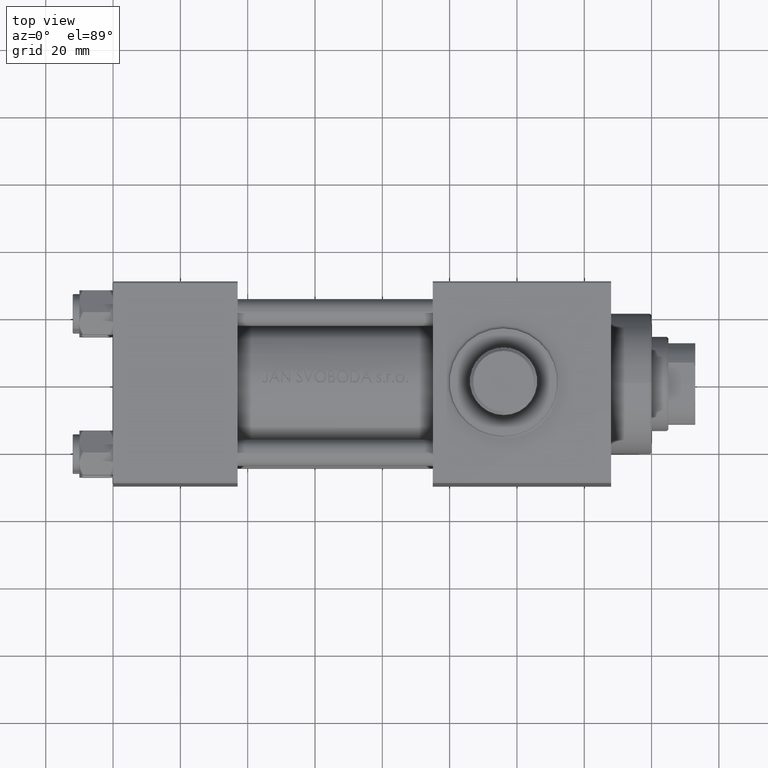
[diagram: clean part render]
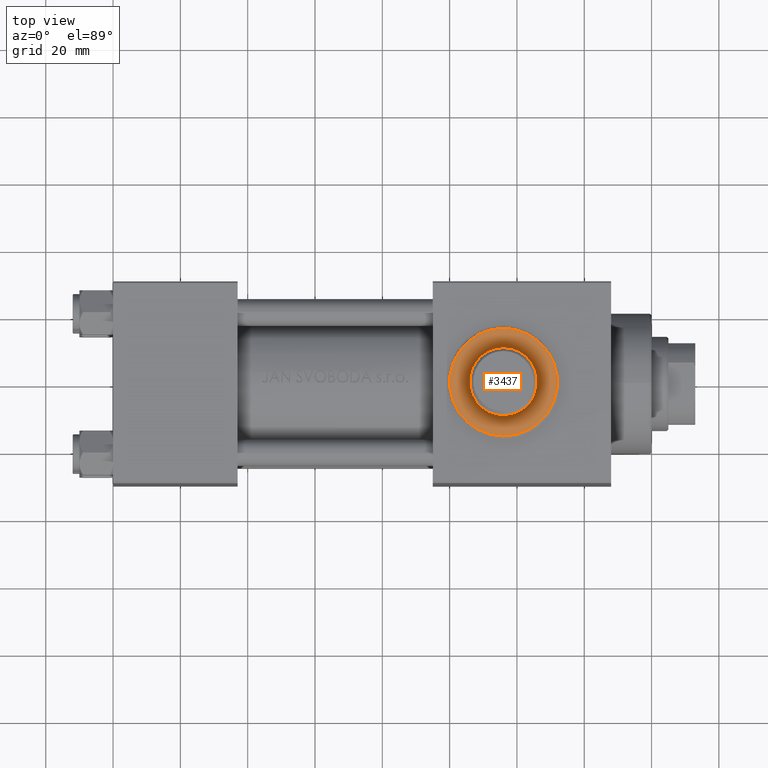
[diagram: same view with one face highlighted and labeled with its STEP entity id]
A machine part, top view. The second image highlights one B-rep face of the part: STEP entity #3437.
In plain terms, the highlighted planar face has unit normal (0, -0, 1).
Its self-contained STEP definition (entity closure, byte-faithful):
#121 = CARTESIAN_POINT ( 'NONE',  ( 115.9999999999999858, -32.50000000000000711, 10.00000000000000888 ) ) ;
#297 = CARTESIAN_POINT ( 'NONE',  ( 115.9999999999999858, -32.50000000000000711, -8.673617379884042868E-17 ) ) ;
#324 = VERTEX_POINT ( 'NONE', #25361 ) ;
#390 = EDGE_LOOP ( 'NONE', ( #46165, #12118 ) ) ;
#877 = FACE_OUTER_BOUND ( 'NONE', #390, .T. ) ;
#1973 = CIRCLE ( 'NONE', #22124, 16.00000000000002487 ) ;
#2490 = VERTEX_POINT ( 'NONE', #121 ) ;
#3098 = DIRECTION ( 'NONE',  ( 0.000000000000000000, 0.000000000000000000, -1.000000000000000000 ) ) ;
#3411 = CARTESIAN_POINT ( 'NONE',  ( 115.9999999999999858, -32.50000000000000711, -10.00000000000000888 ) ) ;
#3437 = ADVANCED_FACE ( 'NONE', ( #14445, #877 ), #43257, .T. ) ;
#3720 = DIRECTION ( 'NONE',  ( 0.000000000000000000, -1.000000000000000000, -8.673617379884036705E-17 ) ) ;
#4411 = CARTESIAN_POINT ( 'NONE',  ( 115.9999999999999858, -32.50000000000000711, -8.673617379884036705E-17 ) ) ;
#5569 = AXIS2_PLACEMENT_3D ( 'NONE', #297, #31883, #27684 ) ;
#8431 = EDGE_LOOP ( 'NONE', ( #38458, #28845 ) ) ;
#8565 = CIRCLE ( 'NONE', #5569, 10.00000000000000888 ) ;
#9632 = CARTESIAN_POINT ( 'NONE',  ( 115.9999999999999858, -32.50000000000000711, -8.673617379884036705E-17 ) ) ;
#11153 = VERTEX_POINT ( 'NONE', #3411 ) ;
#11171 = DIRECTION ( 'NONE',  ( 0.000000000000000000, 8.673617379884036705E-17, -1.000000000000000000 ) ) ;
#12118 = ORIENTED_EDGE ( 'NONE', *, *, #43955, .T. ) ;
#14445 = FACE_BOUND ( 'NONE', #8431, .T. ) ;
#16817 = EDGE_CURVE ( 'NONE', #11153, #2490, #8565, .T. ) ;
#17185 = DIRECTION ( 'NONE',  ( 0.000000000000000000, -1.000000000000000000, -8.673617379884036705E-17 ) ) ;
#22124 = AXIS2_PLACEMENT_3D ( 'NONE', #24423, #17185, #34986 ) ;
#23638 = CIRCLE ( 'NONE', #46101, 16.00000000000002487 ) ;
#23824 = CARTESIAN_POINT ( 'NONE',  ( 115.9999999999999858, -32.50000000000000711, -8.673617379884042868E-17 ) ) ;
#23882 = DIRECTION ( 'NONE',  ( 0.000000000000000000, -1.000000000000000000, -8.673617379884036705E-17 ) ) ;
#24423 = CARTESIAN_POINT ( 'NONE',  ( 115.9999999999999858, -32.50000000000000711, -8.673617379884036705E-17 ) ) ;
#25361 = CARTESIAN_POINT ( 'NONE',  ( 115.9999999999999858, -32.50000000000000711, 16.00000000000002487 ) ) ;
#26315 = CARTESIAN_POINT ( 'NONE',  ( 115.9999999999999858, -32.50000000000000711, -16.00000000000002487 ) ) ;
#27684 = DIRECTION ( 'NONE',  ( 0.000000000000000000, 0.000000000000000000, -1.000000000000000000 ) ) ;
#27797 = DIRECTION ( 'NONE',  ( 0.000000000000000000, 0.000000000000000000, -1.000000000000000000 ) ) ;
#28845 = ORIENTED_EDGE ( 'NONE', *, *, #16817, .F. ) ;
#31883 = DIRECTION ( 'NONE',  ( 0.000000000000000000, -1.000000000000000000, -8.673617379884036705E-17 ) ) ;
#34158 = VERTEX_POINT ( 'NONE', #26315 ) ;
#34609 = DIRECTION ( 'NONE',  ( 0.000000000000000000, -1.000000000000000000, -8.673617379884036705E-17 ) ) ;
#34986 = DIRECTION ( 'NONE',  ( 0.000000000000000000, 0.000000000000000000, -1.000000000000000000 ) ) ;
#38458 = ORIENTED_EDGE ( 'NONE', *, *, #41849, .F. ) ;
#40766 = CIRCLE ( 'NONE', #43783, 10.00000000000000888 ) ;
#41090 = AXIS2_PLACEMENT_3D ( 'NONE', #4411, #3720, #11171 ) ;
#41470 = EDGE_CURVE ( 'NONE', #324, #34158, #23638, .T. ) ;
#41849 = EDGE_CURVE ( 'NONE', #2490, #11153, #40766, .T. ) ;
#43257 = PLANE ( 'NONE',  #41090 ) ;
#43783 = AXIS2_PLACEMENT_3D ( 'NONE', #23824, #34609, #27797 ) ;
#43955 = EDGE_CURVE ( 'NONE', #34158, #324, #1973, .T. ) ;
#46101 = AXIS2_PLACEMENT_3D ( 'NONE', #9632, #23882, #3098 ) ;
#46165 = ORIENTED_EDGE ( 'NONE', *, *, #41470, .T. ) ;